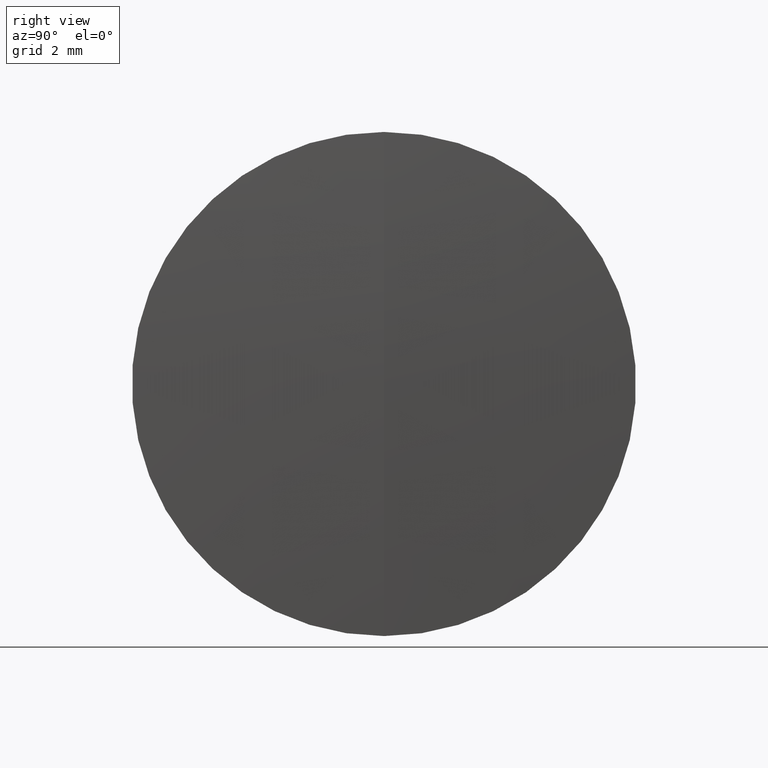
[diagram: clean part render]
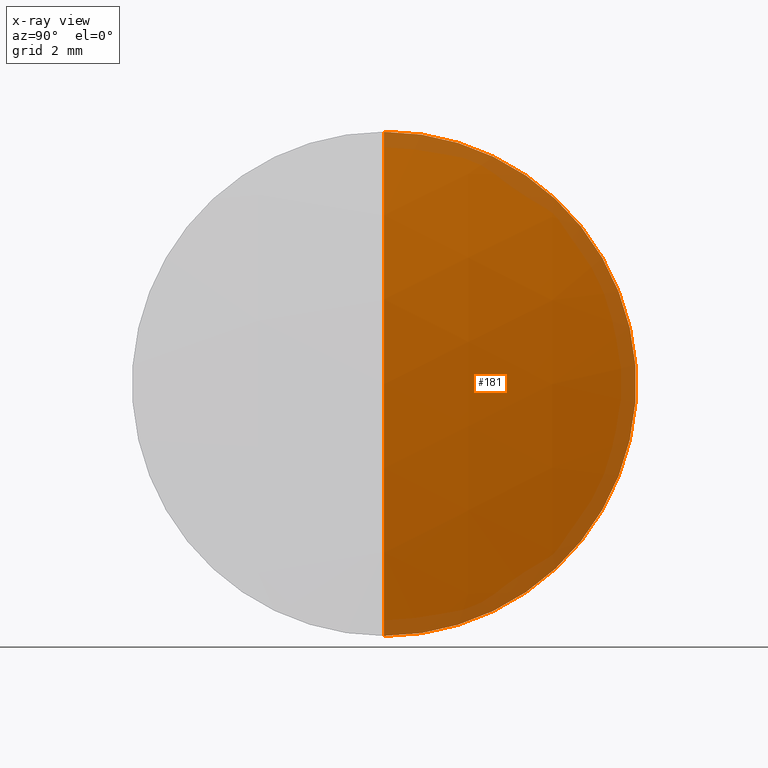
[diagram: x-ray — body ghosted, one internal face saturated and labeled with its STEP entity id]
A machine part, right view, then the same camera in x-ray: the body is ghosted and one INTERNAL B-rep face — a face not visible from any outside direction — is saturated and labeled: STEP entity #181.
In plain terms, the highlighted spherical surface has radius 40.411 mm.
Its self-contained STEP definition (entity closure, byte-faithful):
#30 = AXIS2_PLACEMENT_3D ( 'NONE', #112, #266, #114 ) ;
#34 = ORIENTED_EDGE ( 'NONE', *, *, #310, .T. ) ;
#53 = DIRECTION ( 'NONE',  ( 0.0000000000000000000, 0.0000000000000000000, 1.000000000000000000 ) ) ;
#75 = CARTESIAN_POINT ( 'NONE',  ( 35.61649277584162100, 0.0000000000000000000, 8.000000000000000000 ) ) ;
#77 = CIRCLE ( 'NONE', #229, 40.41100000000000100 ) ;
#82 = EDGE_LOOP ( 'NONE', ( #97, #34, #186 ) ) ;
#91 = VERTEX_POINT ( 'NONE', #329 ) ;
#97 = ORIENTED_EDGE ( 'NONE', *, *, #342, .F. ) ;
#112 = CARTESIAN_POINT ( 'NONE',  ( -3.994729384046351100, 0.0000000000000000000, 1.797088451517447400E-015 ) ) ;
#114 = DIRECTION ( 'NONE',  ( 0.0000000000000000000, 0.0000000000000000000, 1.000000000000000000 ) ) ;
#126 = AXIS2_PLACEMENT_3D ( 'NONE', #313, #255, #53 ) ;
#136 = DIRECTION ( 'NONE',  ( -0.0000000000000000000, 1.000000000000000000, 1.224646799147353200E-016 ) ) ;
#147 = CIRCLE ( 'NONE', #126, 8.000000000000000000 ) ;
#156 = VERTEX_POINT ( 'NONE', #346 ) ;
#163 = EDGE_CURVE ( 'NONE', #332, #156, #147, .T. ) ;
#181 = ADVANCED_FACE ( 'NONE', ( #227 ), #337, .T. ) ;
#186 = ORIENTED_EDGE ( 'NONE', *, *, #163, .F. ) ;
#214 = CARTESIAN_POINT ( 'NONE',  ( -3.994729384046351100, 0.0000000000000000000, 1.797088451517447400E-015 ) ) ;
#221 = CARTESIAN_POINT ( 'NONE',  ( -3.994729384046351100, 0.0000000000000000000, 1.797088451517447400E-015 ) ) ;
#222 = DIRECTION ( 'NONE',  ( 0.0000000000000000000, 0.0000000000000000000, -1.000000000000000000 ) ) ;
#226 = DIRECTION ( 'NONE',  ( 0.0000000000000000000, -1.224646799147353200E-016, 1.000000000000000000 ) ) ;
#227 = FACE_OUTER_BOUND ( 'NONE', #82, .T. ) ;
#229 = AXIS2_PLACEMENT_3D ( 'NONE', #221, #335, #222 ) ;
#255 = DIRECTION ( 'NONE',  ( -1.000000000000000000, -0.0000000000000000000, -0.0000000000000000000 ) ) ;
#266 = DIRECTION ( 'NONE',  ( 0.0000000000000000000, 1.000000000000000000, 0.0000000000000000000 ) ) ;
#284 = AXIS2_PLACEMENT_3D ( 'NONE', #214, #136, #226 ) ;
#310 = EDGE_CURVE ( 'NONE', #91, #156, #314, .T. ) ;
#313 = CARTESIAN_POINT ( 'NONE',  ( 35.61649277584162100, 0.0000000000000000000, 0.0000000000000000000 ) ) ;
#314 = CIRCLE ( 'NONE', #284, 40.41100000000000100 ) ;
#329 = CARTESIAN_POINT ( 'NONE',  ( 36.41627061595365000, 0.0000000000000000000, 4.271548541534632700E-015 ) ) ;
#332 = VERTEX_POINT ( 'NONE', #75 ) ;
#335 = DIRECTION ( 'NONE',  ( 0.0000000000000000000, -1.000000000000000000, 0.0000000000000000000 ) ) ;
#337 = SPHERICAL_SURFACE ( 'NONE', #30, 40.41100000000000100 ) ;
#342 = EDGE_CURVE ( 'NONE', #91, #332, #77, .T. ) ;
#346 = CARTESIAN_POINT ( 'NONE',  ( 35.61649277584162100, 9.797174393178825700E-016, -8.000000000000000000 ) ) ;